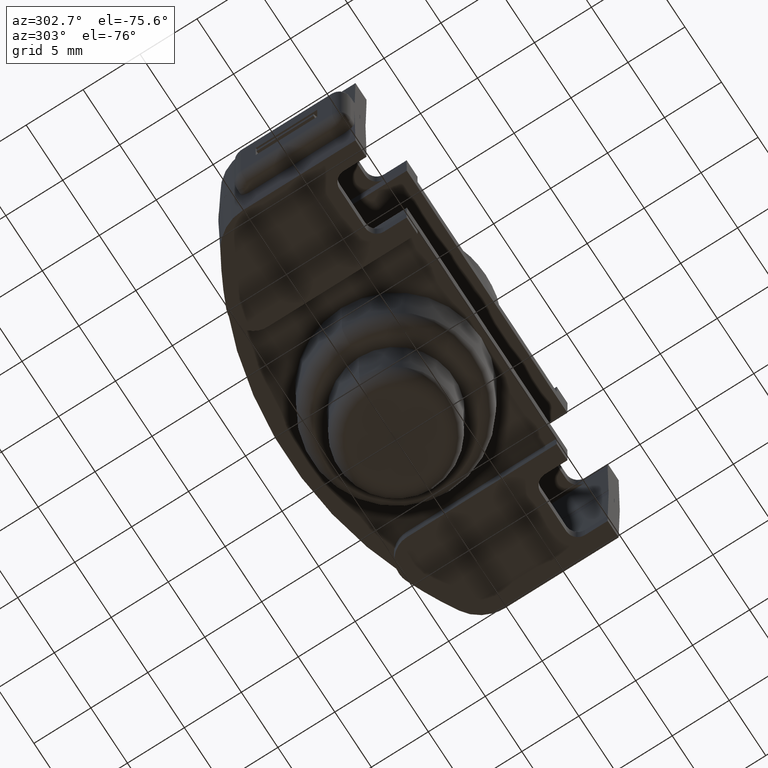
[diagram: clean part render]
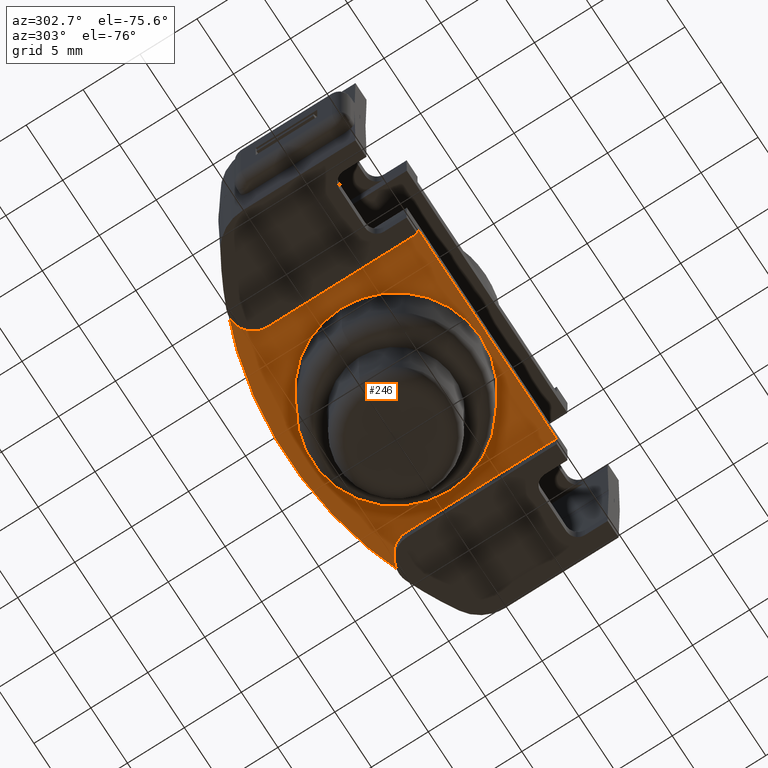
[diagram: same view with one face highlighted and labeled with its STEP entity id]
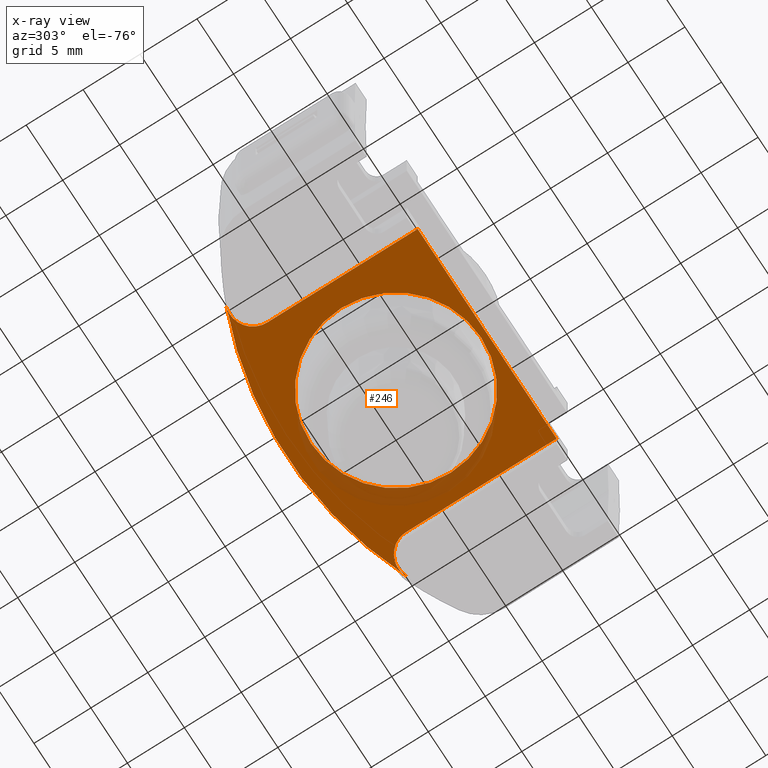
[diagram: x-ray of the same camera — body ghosted, the highlighted face saturated]
A machine part, auxiliary view. The second image highlights one B-rep face of the part: STEP entity #246.
The next image is the same camera in x-ray: the body ghosted, the highlighted face saturated — about 12% of this face is hidden behind the body in this view.
In plain terms, the highlighted planar face has unit normal (0, 0, 1).
Its self-contained STEP definition (entity closure, byte-faithful):
#246=ADVANCED_FACE('',(#606,#607),#608,.F.);
#606=FACE_OUTER_BOUND('',#1132,.T.);
#607=FACE_BOUND('',#1133,.T.);
#608=PLANE('',#1134);
#1132=EDGE_LOOP('',(#2453,#2454,#2455,#2456,#2457,#2458));
#1133=EDGE_LOOP('',(#2459,#2460));
#1134=AXIS2_PLACEMENT_3D('',#2461,#2462,#2463);
#2453=ORIENTED_EDGE('',*,*,#3179,.T.);
#2454=ORIENTED_EDGE('',*,*,#3204,.T.);
#2455=ORIENTED_EDGE('',*,*,#3205,.T.);
#2456=ORIENTED_EDGE('',*,*,#3206,.T.);
#2457=ORIENTED_EDGE('',*,*,#3191,.F.);
#2458=ORIENTED_EDGE('',*,*,#3194,.T.);
#2459=ORIENTED_EDGE('',*,*,#3203,.F.);
#2460=ORIENTED_EDGE('',*,*,#3111,.F.);
#2461=CARTESIAN_POINT('',(9.49977150793431,12.0,-19.0000000000005));
#2462=DIRECTION('',(1.73472347597679E-16,1.22464679914735E-16,1.0));
#2463=DIRECTION('',(1.0,-2.12442355226075E-32,-1.73472347597679E-16));
#3111=EDGE_CURVE('',#3820,#3823,#3824,.F.);
#3179=EDGE_CURVE('',#3950,#3951,#3952,.F.);
#3191=EDGE_CURVE('',#3970,#3972,#3973,.T.);
#3194=EDGE_CURVE('',#3970,#3950,#3976,.T.);
#3203=EDGE_CURVE('',#3823,#3820,#3985,.F.);
#3204=EDGE_CURVE('',#3951,#3986,#3987,.T.);
#3205=EDGE_CURVE('',#3986,#3988,#3989,.T.);
#3206=EDGE_CURVE('',#3988,#3972,#3990,.T.);
#3820=VERTEX_POINT('',#5040);
#3823=VERTEX_POINT('',#5044);
#3824=CIRCLE('',#5045,7.47381740260767);
#3950=VERTEX_POINT('',#5282);
#3951=VERTEX_POINT('',#5283);
#3952=CIRCLE('',#5284,31.5261825973923);
#3970=VERTEX_POINT('',#5314);
#3972=VERTEX_POINT('',#5322);
#3973=LINE('',#5323,#5324);
#3976=B_SPLINE_CURVE_WITH_KNOTS('',3,(#5345,#5346,#5347,#5348,#5349,#5350,#5351,#5352,#5353,#5354,#5355,#5356,#5357,#5358,#5359,#5360,#5361,#5362),.UNSPECIFIED.,.F.,.F.,(4,2,2,2,2,2,2,2,4),(0.0,0.00049013143984406,0.00098026287968812,0.00147039431953218,0.00196052575937624,0.0024506571992203,0.00294078863906436,0.00343092007890842,0.00392105151875248),.UNSPECIFIED.);
#3985=CIRCLE('',#5371,7.47381740260767);
#3986=VERTEX_POINT('',#5372);
#3987=B_SPLINE_CURVE_WITH_KNOTS('',3,(#5373,#5374,#5375,#5376,#5377,#5378,#5379,#5380,#5381,#5382,#5383,#5384,#5385,#5386,#5387,#5388,#5389,#5390),.UNSPECIFIED.,.F.,.F.,(4,2,2,2,2,2,2,2,4),(0.0,0.000490131439785393,0.000980262879570786,0.00147039431935618,0.00196052575914157,0.00245065719892696,0.00294078863871236,0.00343092007849775,0.00392105151828314),.UNSPECIFIED.);
#3988=VERTEX_POINT('',#5391);
#3989=LINE('',#5392,#5393);
#3990=LINE('',#5394,#5395);
#5040=CARTESIAN_POINT('',(7.47381740260767,-1.00314183989744E-15,-19.0000000000005));
#5044=CARTESIAN_POINT('',(-7.47381740260767,-1.7347234759768E-15,-19.0000000000005));
#5045=AXIS2_PLACEMENT_3D('',#6028,#6029,#6030);
#5282=CARTESIAN_POINT('',(-12.2782737636288,7.03694513115155,-19.0000000000005));
#5283=CARTESIAN_POINT('',(12.2782737636288,7.0369451311516,-19.0000000000005));
#5284=AXIS2_PLACEMENT_3D('',#6132,#6133,#6134);
#5314=CARTESIAN_POINT('',(-9.49977150793434,5.19514125438495,-19.0000000000005));
#5322=CARTESIAN_POINT('',(-9.49977150793434,-8.0,-19.0000000000005));
#5323=CARTESIAN_POINT('',(-9.49977150793434,12.0,-19.0000000000005));
#5324=VECTOR('',#6147,1000.0);
#5345=CARTESIAN_POINT('',(-9.49977150793434,5.19514125438495,-19.0000000000005));
#5346=CARTESIAN_POINT('',(-9.49977150793434,5.36086965962815,-19.0000000000005));
#5347=CARTESIAN_POINT('',(-9.52004707123878,5.5231458372146,-19.0000000000005));
#5348=CARTESIAN_POINT('',(-9.59981099374564,5.84102160853803,-19.0000000000005));
#5349=CARTESIAN_POINT('',(-9.66017297403559,5.99689251026718,-19.0000000000005));
#5350=CARTESIAN_POINT('',(-9.81466682817108,6.2848469668047,-19.0000000000005));
#5351=CARTESIAN_POINT('',(-9.9107475983125,6.42085177470967,-19.0000000000005));
#5352=CARTESIAN_POINT('',(-10.1320357969401,6.66369866548521,-19.0000000000005));
#5353=CARTESIAN_POINT('',(-10.2560112151848,6.77014280941462,-19.0000000000005));
#5354=CARTESIAN_POINT('',(-10.5309924595224,6.95265926161304,-19.0000000000005));
#5355=CARTESIAN_POINT('',(-10.6787790405687,7.02619944919911,-19.0000000000005));
#5356=CARTESIAN_POINT('',(-10.9872565291905,7.13519555592338,-19.0000000000005));
#5357=CARTESIAN_POINT('',(-11.1507613639867,7.17111056710243,-19.0000000000005));
#5358=CARTESIAN_POINT('',(-11.4763746188223,7.20145985310576,-19.0000000000005));
#5359=CARTESIAN_POINT('',(-11.6417034153064,7.19663716537963,-19.0000000000005));
#5360=CARTESIAN_POINT('',(-11.9677600140964,7.14623148812438,-19.0000000000005));
#5361=CARTESIAN_POINT('',(-12.1256307232716,7.10149024873038,-19.0000000000005));
#5362=CARTESIAN_POINT('',(-12.2782737636288,7.0369451311516,-19.0000000000005));
#5371=AXIS2_PLACEMENT_3D('',#6173,#6174,#6175);
#5372=CARTESIAN_POINT('',(9.49977150793431,5.195141254385,-19.0000000000005));
#5373=CARTESIAN_POINT('',(12.2782737636288,7.0369451311516,-19.0000000000005));
#5374=CARTESIAN_POINT('',(12.1256309056983,7.10149017159121,-19.0000000000005));
#5375=CARTESIAN_POINT('',(11.9682711184465,7.14601604750306,-19.0000000000005));
#5376=CARTESIAN_POINT('',(11.64442903632,7.19635087809264,-19.0000000000005));
#5377=CARTESIAN_POINT('',(11.4773566125244,7.20146085522899,-19.0000000000005));
#5378=CARTESIAN_POINT('',(11.1519687999786,7.17131302705909,-19.0000000000005));
#5379=CARTESIAN_POINT('',(10.989282749117,7.13578738798161,-19.0000000000005));
#5380=CARTESIAN_POINT('',(10.6794269997919,7.02655143348387,-19.0000000000005));
#5381=CARTESIAN_POINT('',(10.5331036418307,6.95382086903036,-19.0000000000005));
#5382=CARTESIAN_POINT('',(10.2579033316662,6.77163489471161,-19.0000000000005));
#5383=CARTESIAN_POINT('',(10.1326123453718,6.66415837855324,-19.0000000000005));
#5384=CARTESIAN_POINT('',(9.91208183808027,6.42248751258621,-19.0000000000005));
#5385=CARTESIAN_POINT('',(9.81532355382344,6.28588021595717,-19.0000000000005));
#5386=CARTESIAN_POINT('',(9.66055634700766,5.99779657768228,-19.0000000000005));
#5387=CARTESIAN_POINT('',(9.60060883897067,5.84364351898831,-19.0000000000005));
#5388=CARTESIAN_POINT('',(9.52004769743862,5.52370049205444,-19.0000000000005));
#5389=CARTESIAN_POINT('',(9.49977150793431,5.36086985771591,-19.0000000000005));
#5390=CARTESIAN_POINT('',(9.49977150793431,5.195141254385,-19.0000000000005));
#5391=CARTESIAN_POINT('',(9.49977150793431,-8.0,-19.0000000000005));
#5392=CARTESIAN_POINT('',(9.49977150793431,12.0,-19.0000000000005));
#5393=VECTOR('',#6176,1000.0);
#5394=CARTESIAN_POINT('',(524.548749937394,-8.0,-19.0000000000006));
#5395=VECTOR('',#6177,1000.0);
#6028=CARTESIAN_POINT('',(-4.97786539761924E-16,-1.7347234759768E-15,-19.0000000000005));
#6029=DIRECTION('',(1.73472347597679E-16,1.22464679914735E-16,1.0));
#6030=DIRECTION('',(-1.0,2.12442355226075E-32,1.73472347597679E-16));
#6132=CARTESIAN_POINT('',(6.1587741229374E-16,-22.0,-19.0000000000005));
#6133=DIRECTION('',(1.73472347597679E-16,1.22464679914735E-16,1.0));
#6134=DIRECTION('',(-1.0,2.12442355226075E-32,1.73472347597679E-16));
#6147=DIRECTION('',(0.0,-1.0,1.22464679914735E-16));
#6173=CARTESIAN_POINT('',(-4.97786539761924E-16,-1.7347234759768E-15,-19.0000000000005));
#6174=DIRECTION('',(1.73472347597679E-16,1.22464679914735E-16,1.0));
#6175=DIRECTION('',(-1.0,2.12442355226075E-32,1.73472347597679E-16));
#6176=DIRECTION('',(0.0,-1.0,1.22464679914735E-16));
#6177=DIRECTION('',(-1.0,2.12442355226075E-32,1.73472347597679E-16));